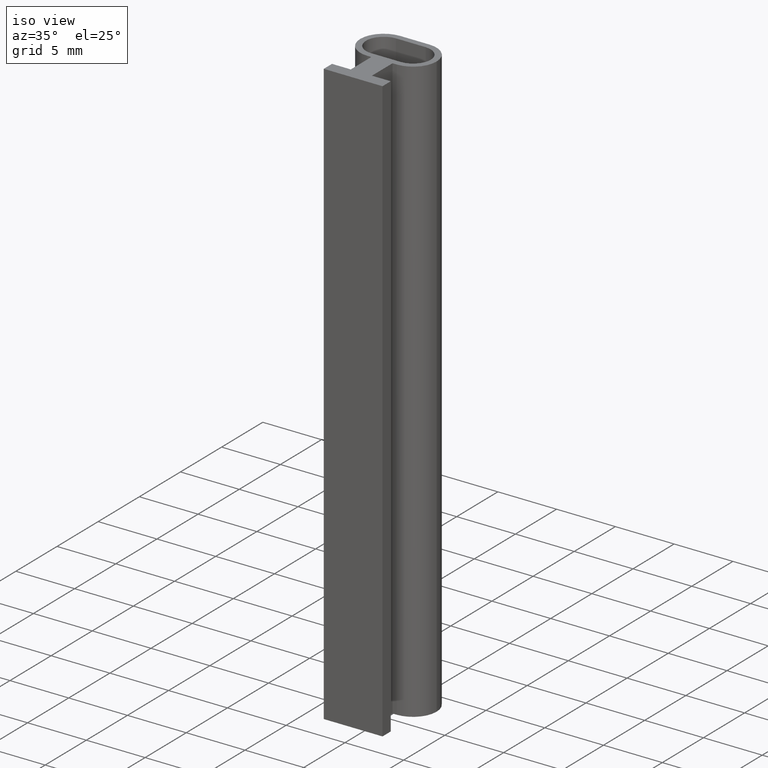
[diagram: clean part render]
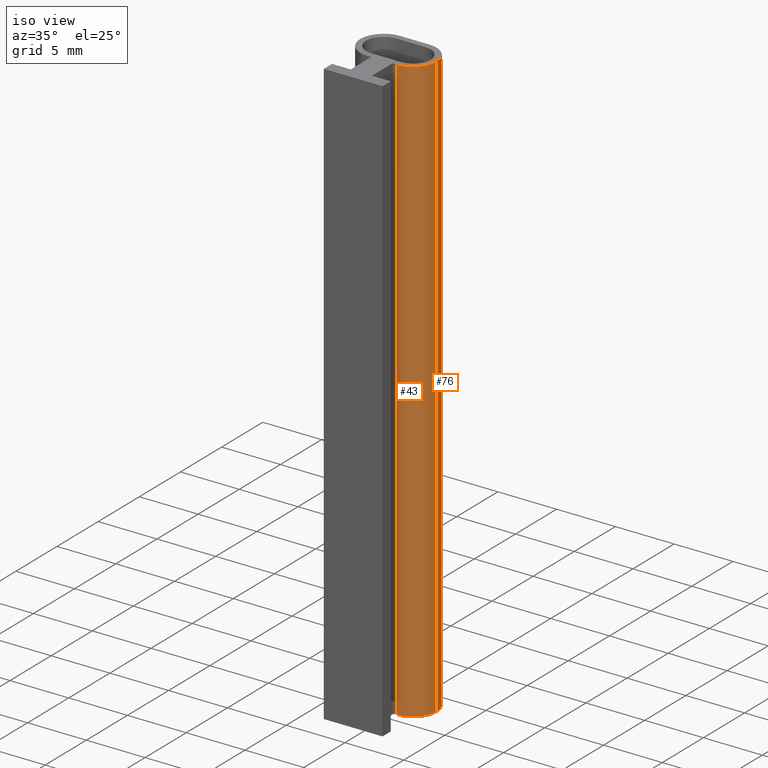
[diagram: same view with one multi-face feature highlighted, each face labeled with its STEP entity id]
A machine part, iso view. The highlighted faces form ONE feature: a constant-radius fillet chain: 2 tangent blend faces with common blend radius 2 mm. The faces share edges in the B-rep.
Their STEP definitions:
[1] entity #76 (Cylinder):
#9=CARTESIAN_POINT('',(3.250000000000000,1.500000000000000,-50.0));
#10=VERTEX_POINT('',#9);
#18=CARTESIAN_POINT('',(3.250000000000000,1.500000000000000,0.0));
#19=VERTEX_POINT('',#18);
#20=CARTESIAN_POINT('',(3.250000000000000,1.500000000000000,-50.0));
#21=DIRECTION('',(0.0,0.0,1.0));
#22=VECTOR('',#21,50.0);
#23=LINE('',#20,#22);
#24=EDGE_CURVE('',#10,#19,#23,.T.);
#44=CARTESIAN_POINT('',(1.250000000000000,1.500000000000000,-50.0));
#45=DIRECTION('',(0.0,0.0,1.0));
#46=DIRECTION('',(1.0,6.123234E-017,0.0));
#47=AXIS2_PLACEMENT_3D('',#44,#45,#46);
#48=CYLINDRICAL_SURFACE('',#47,2.0);
#49=CARTESIAN_POINT('',(1.250000000000000,3.500000000000000,-50.0));
#50=VERTEX_POINT('',#49);
#51=CARTESIAN_POINT('',(1.250000000000000,1.500000000000000,-50.0));
#52=DIRECTION('',(0.0,0.0,1.0));
#53=DIRECTION('',(0.0,1.0,0.0));
#54=AXIS2_PLACEMENT_3D('',#51,#52,#53);
#55=CIRCLE('',#54,2.0);
#56=EDGE_CURVE('',#10,#50,#55,.T.);
#57=ORIENTED_EDGE('',*,*,#56,.T.);
#58=CARTESIAN_POINT('',(1.250000000000000,3.500000000000000,0.0));
#59=VERTEX_POINT('',#58);
#60=CARTESIAN_POINT('',(1.250000000000000,3.500000000000000,-50.0));
#61=DIRECTION('',(0.0,0.0,1.0));
#62=VECTOR('',#61,50.0);
#63=LINE('',#60,#62);
#64=EDGE_CURVE('',#50,#59,#63,.T.);
#65=ORIENTED_EDGE('',*,*,#64,.T.);
#66=CARTESIAN_POINT('',(1.250000000000000,1.500000000000000,0.0));
#67=DIRECTION('',(0.0,0.0,1.0));
#68=DIRECTION('',(0.0,1.0,0.0));
#69=AXIS2_PLACEMENT_3D('',#66,#67,#68);
#70=CIRCLE('',#69,2.0);
#71=EDGE_CURVE('',#19,#59,#70,.T.);
#72=ORIENTED_EDGE('',*,*,#71,.F.);
#73=ORIENTED_EDGE('',*,*,#24,.F.);
#74=EDGE_LOOP('',(#57,#65,#72,#73));
#75=FACE_OUTER_BOUND('',#74,.T.);
#76=ADVANCED_FACE('',(#75),#48,.T.);
[2] entity #43 (Cylinder):
#2=CARTESIAN_POINT('',(1.250000000000000,1.500000000000000,-50.0));
#3=DIRECTION('',(0.0,0.0,1.0));
#4=DIRECTION('',(6.123234E-017,-1.0,0.0));
#5=AXIS2_PLACEMENT_3D('',#2,#3,#4);
#6=CYLINDRICAL_SURFACE('',#5,2.0);
#7=CARTESIAN_POINT('',(1.250000000000000,-0.500000000000000,-50.0));
#8=VERTEX_POINT('',#7);
#9=CARTESIAN_POINT('',(3.250000000000000,1.500000000000000,-50.0));
#10=VERTEX_POINT('',#9);
#11=CARTESIAN_POINT('',(1.250000000000000,1.500000000000000,-50.0));
#12=DIRECTION('',(0.0,0.0,1.0));
#13=DIRECTION('',(1.0,0.0,0.0));
#14=AXIS2_PLACEMENT_3D('',#11,#12,#13);
#15=CIRCLE('',#14,2.0);
#16=EDGE_CURVE('',#8,#10,#15,.T.);
#17=ORIENTED_EDGE('',*,*,#16,.T.);
#18=CARTESIAN_POINT('',(3.250000000000000,1.500000000000000,0.0));
#19=VERTEX_POINT('',#18);
#20=CARTESIAN_POINT('',(3.250000000000000,1.500000000000000,-50.0));
#21=DIRECTION('',(0.0,0.0,1.0));
#22=VECTOR('',#21,50.0);
#23=LINE('',#20,#22);
#24=EDGE_CURVE('',#10,#19,#23,.T.);
#25=ORIENTED_EDGE('',*,*,#24,.T.);
#26=CARTESIAN_POINT('',(1.250000000000000,-0.500000000000000,0.0));
#27=VERTEX_POINT('',#26);
#28=CARTESIAN_POINT('',(1.250000000000000,1.500000000000000,0.0));
#29=DIRECTION('',(0.0,0.0,1.0));
#30=DIRECTION('',(1.0,0.0,0.0));
#31=AXIS2_PLACEMENT_3D('',#28,#29,#30);
#32=CIRCLE('',#31,2.0);
#33=EDGE_CURVE('',#27,#19,#32,.T.);
#34=ORIENTED_EDGE('',*,*,#33,.F.);
#35=CARTESIAN_POINT('',(1.250000000000000,-0.500000000000000,-50.0));
#36=DIRECTION('',(0.0,0.0,1.0));
#37=VECTOR('',#36,50.0);
#38=LINE('',#35,#37);
#39=EDGE_CURVE('',#8,#27,#38,.T.);
#40=ORIENTED_EDGE('',*,*,#39,.F.);
#41=EDGE_LOOP('',(#17,#25,#34,#40));
#42=FACE_OUTER_BOUND('',#41,.T.);
#43=ADVANCED_FACE('',(#42),#6,.T.);